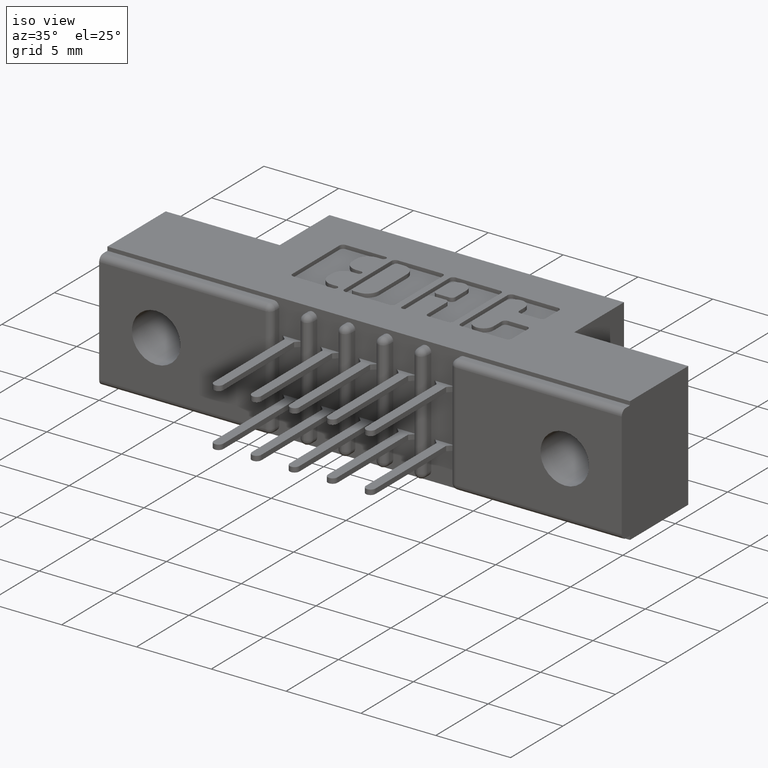
[diagram: clean part render]
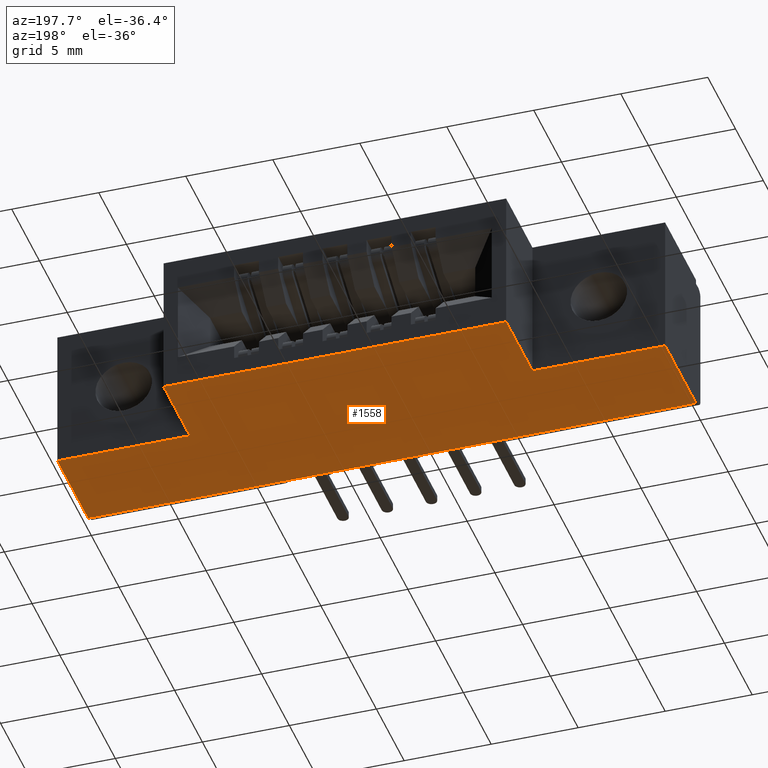
[diagram: tour spotlight — one face highlighted and labeled with its STEP entity id]
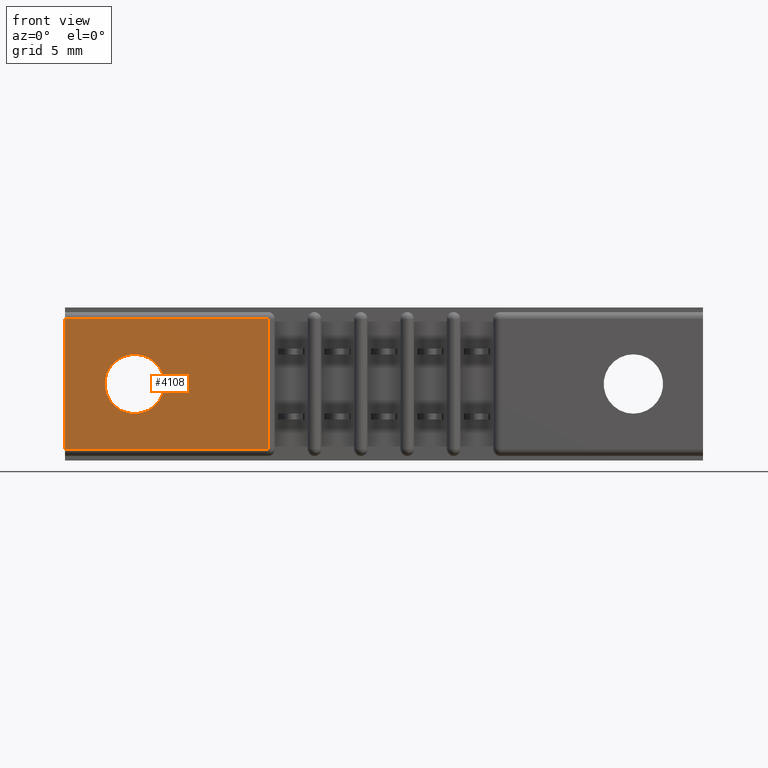
[diagram: tour spotlight — one face highlighted and labeled with its STEP entity id]
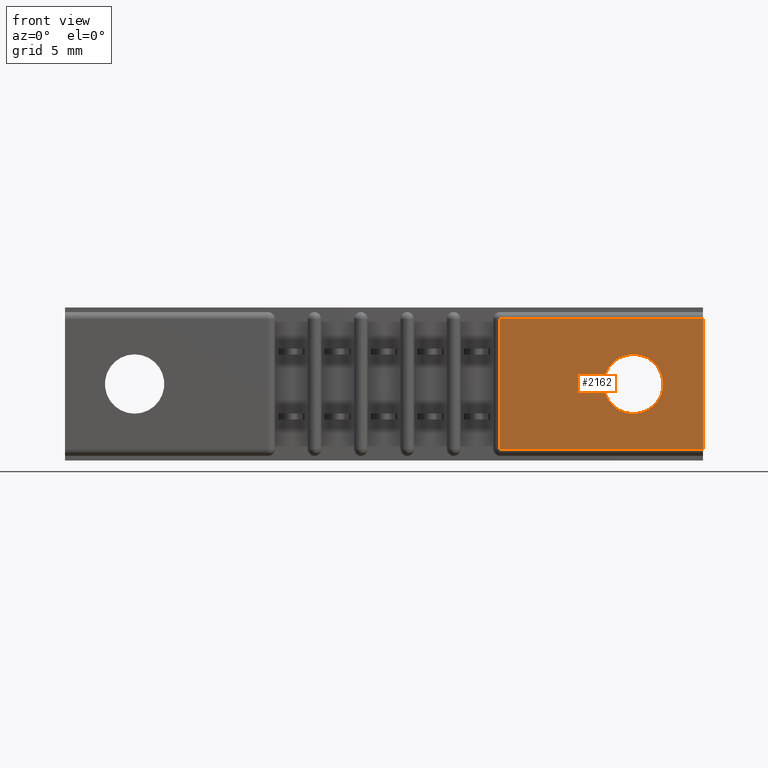
[diagram: tour spotlight — one face highlighted and labeled with its STEP entity id]
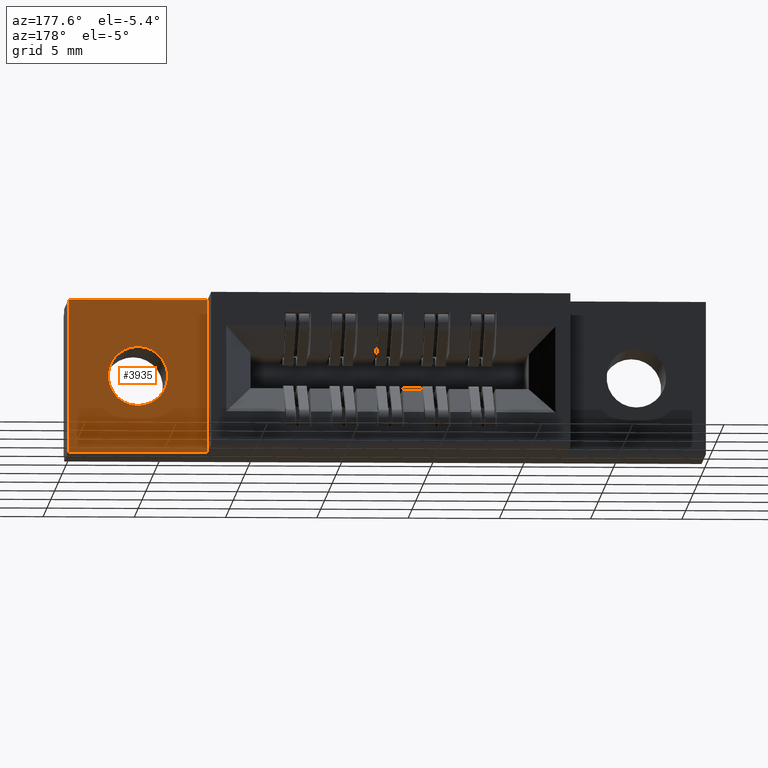
[diagram: tour spotlight — one face highlighted and labeled with its STEP entity id]
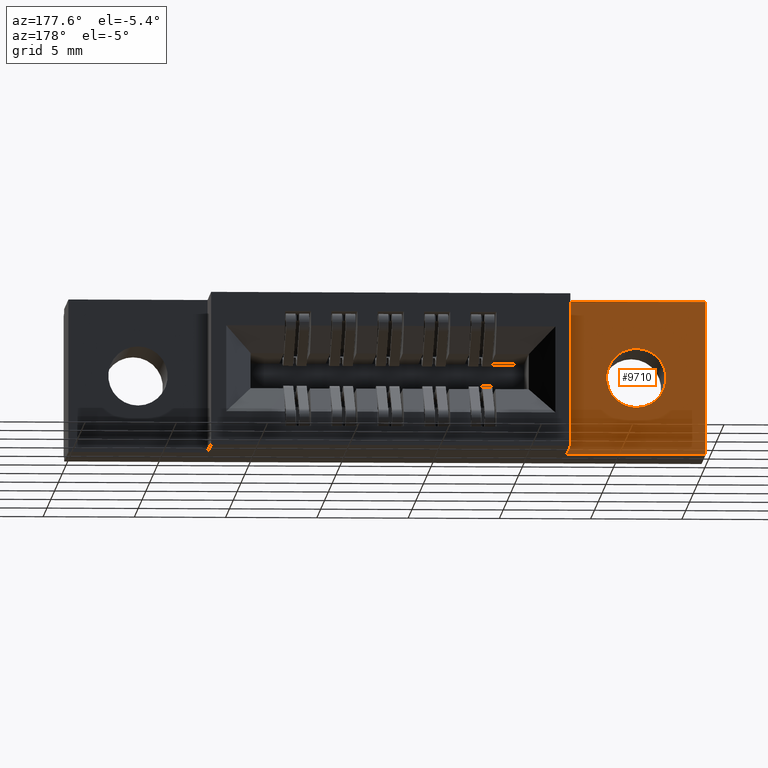
[diagram: tour spotlight — one face highlighted and labeled with its STEP entity id]
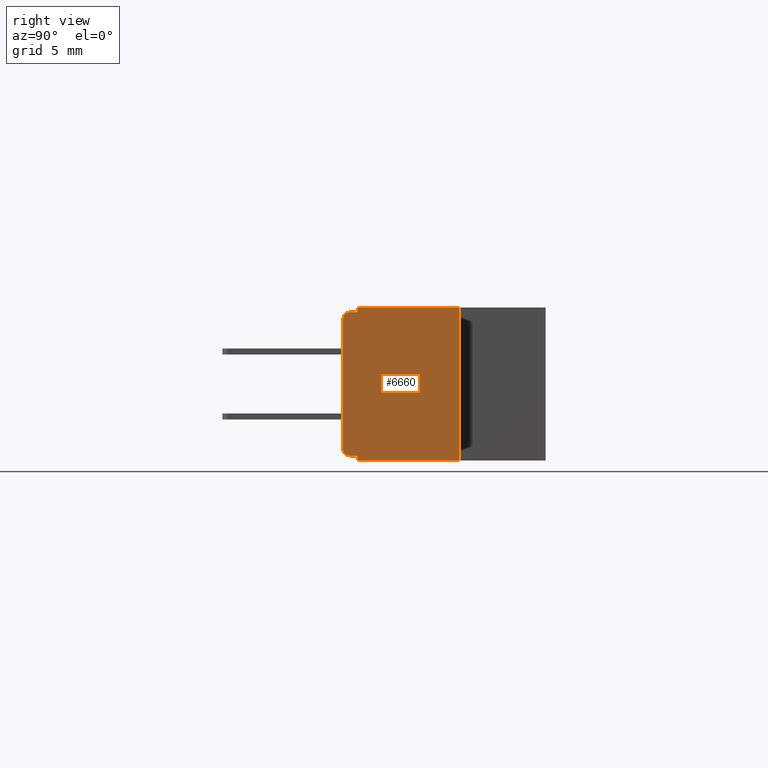
[diagram: tour spotlight — one face highlighted and labeled with its STEP entity id]
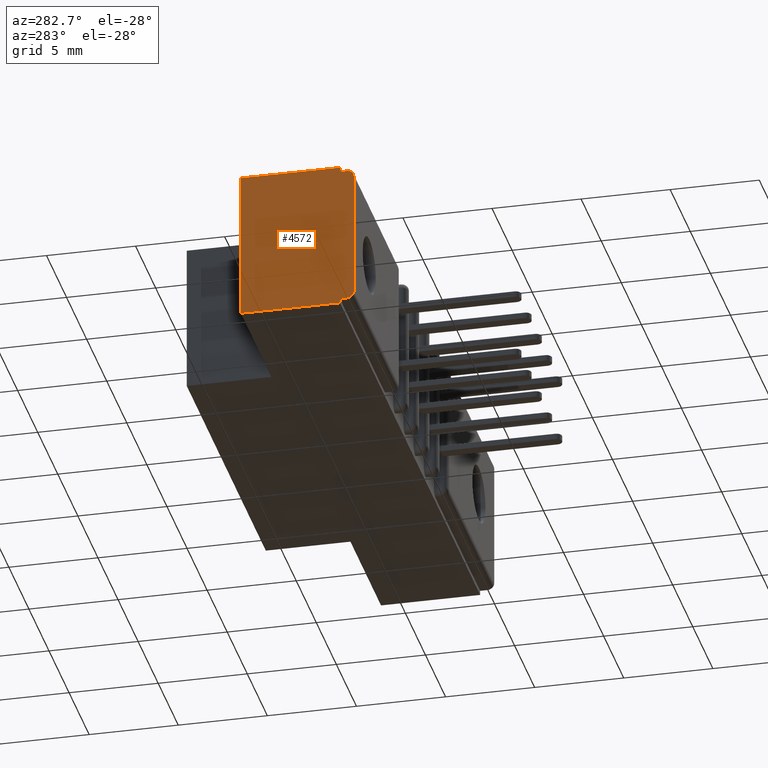
[diagram: tour spotlight — one face highlighted and labeled with its STEP entity id]
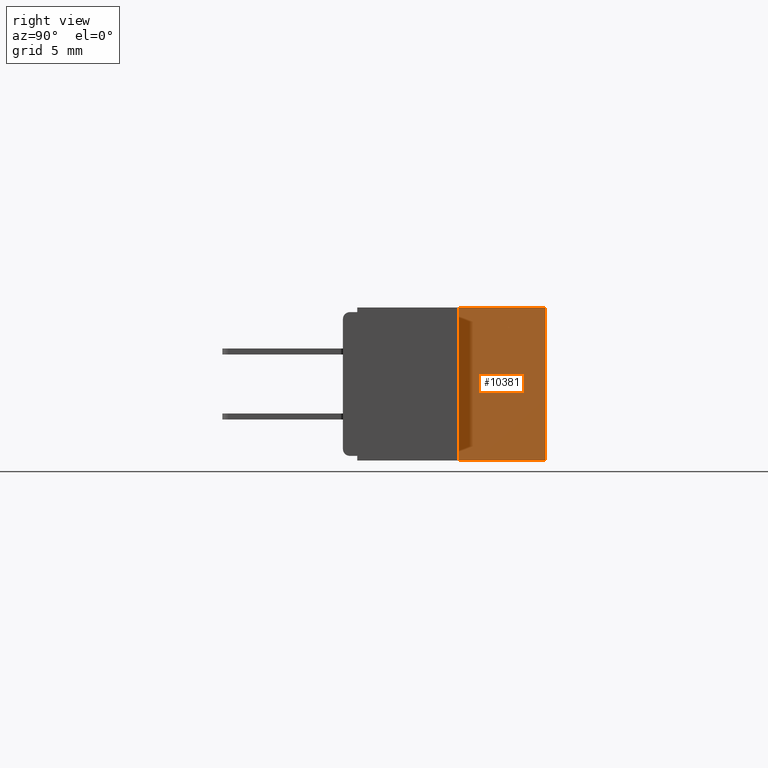
[diagram: tour spotlight — one face highlighted and labeled with its STEP entity id]
A machine part: a face-by-face anatomy tour. The part has 776 B-rep faces; the first image is the clean iso view, then the 8 largest visible faces are spotlighted one at a time (largest first), each with its STEP entity span.

Face 1 — auxiliary view, entity #1558. In plain terms, the highlighted planar face has unit normal (0, 0, 1).
Definition (entity closure, byte-faithful):
#632 = LINE ( 'NONE', #4610, #7592 ) ;
#1298 = CARTESIAN_POINT ( 'NONE',  ( 1.075000000000000000, 0.2500000000000000000, -0.3300000000000000200 ) ) ;
#1558 = ADVANCED_FACE ( 'NONE', ( #4088 ), #8447, .F. ) ;
#1804 = VECTOR ( 'NONE', #8554, 39.37007874015748100 ) ;
#1938 = DIRECTION ( 'NONE',  ( -0.0000000000000000000, -1.000000000000000000, -0.0000000000000000000 ) ) ;
#2099 = EDGE_CURVE ( 'NONE', #10611, #6174, #6295, .T. ) ;
#2103 = LINE ( 'NONE', #2638, #7093 ) ;
#2166 = DIRECTION ( 'NONE',  ( 1.000000000000000000, 0.0000000000000000000, -0.0000000000000000000 ) ) ;
#2638 = CARTESIAN_POINT ( 'NONE',  ( 0.0000000000000000000, 0.4370000000000000000, -0.3300000000000000200 ) ) ;
#2770 = EDGE_CURVE ( 'NONE', #4514, #5449, #7343, .T. ) ;
#2853 = EDGE_CURVE ( 'NONE', #6174, #5449, #8644, .T. ) ;
#2933 = CARTESIAN_POINT ( 'NONE',  ( 1.375000000000000000, 0.2500000000000000000, -0.3300000000000000200 ) ) ;
#2983 = EDGE_CURVE ( 'NONE', #10653, #4514, #5148, .T. ) ;
#3132 = EDGE_CURVE ( 'NONE', #10653, #6095, #8293, .T. ) ;
#3149 = EDGE_CURVE ( 'NONE', #10411, #7010, #632, .T. ) ;
#3163 = CARTESIAN_POINT ( 'NONE',  ( 0.0000000000000000000, 0.03099999999999996200, -0.3299999999999999000 ) ) ;
#3302 = EDGE_CURVE ( 'NONE', #10611, #10411, #5985, .T. ) ;
#3617 = ORIENTED_EDGE ( 'NONE', *, *, #2099, .T. ) ;
#3640 = CARTESIAN_POINT ( 'NONE',  ( 1.375000000000000000, 0.4370000000000000000, -0.3300000000000000200 ) ) ;
#3690 = ORIENTED_EDGE ( 'NONE', *, *, #2770, .F. ) ;
#3910 = CARTESIAN_POINT ( 'NONE',  ( 0.2999999999999999300, 0.2500000000000000000, -0.3300000000000000200 ) ) ;
#4088 = FACE_OUTER_BOUND ( 'NONE', #5371, .T. ) ;
#4143 = ORIENTED_EDGE ( 'NONE', *, *, #3302, .F. ) ;
#4223 = DIRECTION ( 'NONE',  ( -1.000000000000000000, -0.0000000000000000000, -0.0000000000000000000 ) ) ;
#4292 = CARTESIAN_POINT ( 'NONE',  ( 1.375000000000000000, 0.2500000000000000000, -0.3300000000000000200 ) ) ;
#4514 = VERTEX_POINT ( 'NONE', #4648 ) ;
#4550 = DIRECTION ( 'NONE',  ( -0.0000000000000000000, 1.000000000000000000, -0.0000000000000000000 ) ) ;
#4563 = DIRECTION ( 'NONE',  ( -1.000000000000000000, 0.0000000000000000000, 0.0000000000000000000 ) ) ;
#4610 = CARTESIAN_POINT ( 'NONE',  ( 1.075000000000000000, 0.2500000000000000000, -0.3300000000000000200 ) ) ;
#4615 = CARTESIAN_POINT ( 'NONE',  ( 1.075000000000000000, 0.4370000000000000000, -0.3300000000000000200 ) ) ;
#4648 = CARTESIAN_POINT ( 'NONE',  ( 0.0000000000000000000, 0.2500000000000000000, -0.3300000000000000200 ) ) ;
#4679 = ORIENTED_EDGE ( 'NONE', *, *, #2983, .F. ) ;
#4869 = ORIENTED_EDGE ( 'NONE', *, *, #2853, .T. ) ;
#5148 = LINE ( 'NONE', #8785, #7711 ) ;
#5214 = CARTESIAN_POINT ( 'NONE',  ( 0.2999999999999999300, 0.2500000000000000000, -0.3300000000000000200 ) ) ;
#5241 = DIRECTION ( 'NONE',  ( 0.0000000000000000000, 0.0000000000000000000, 1.000000000000000000 ) ) ;
#5371 = EDGE_LOOP ( 'NONE', ( #3617, #4869, #3690, #4679, #7177, #6809, #5536, #4143 ) ) ;
#5449 = VERTEX_POINT ( 'NONE', #3163 ) ;
#5536 = ORIENTED_EDGE ( 'NONE', *, *, #3149, .F. ) ;
#5985 = LINE ( 'NONE', #2933, #9916 ) ;
#6011 = VECTOR ( 'NONE', #1938, 39.37007874015748100 ) ;
#6095 = VERTEX_POINT ( 'NONE', #9013 ) ;
#6174 = VERTEX_POINT ( 'NONE', #8804 ) ;
#6295 = LINE ( 'NONE', #3640, #6011 ) ;
#6327 = DIRECTION ( 'NONE',  ( -0.0000000000000000000, -1.000000000000000000, -0.0000000000000000000 ) ) ;
#6459 = DIRECTION ( 'NONE',  ( -0.0000000000000000000, 1.000000000000000000, -0.0000000000000000000 ) ) ;
#6809 = ORIENTED_EDGE ( 'NONE', *, *, #9638, .F. ) ;
#7010 = VERTEX_POINT ( 'NONE', #4615 ) ;
#7049 = CARTESIAN_POINT ( 'NONE',  ( 1.375000000000000000, 0.03099999999999996200, -0.3299999999999999000 ) ) ;
#7072 = AXIS2_PLACEMENT_3D ( 'NONE', #10477, #5241, #2166 ) ;
#7079 = VECTOR ( 'NONE', #6327, 39.37007874015748100 ) ;
#7093 = VECTOR ( 'NONE', #7888, 39.37007874015748100 ) ;
#7177 = ORIENTED_EDGE ( 'NONE', *, *, #3132, .T. ) ;
#7343 = LINE ( 'NONE', #8551, #7079 ) ;
#7592 = VECTOR ( 'NONE', #6459, 39.37007874015748100 ) ;
#7711 = VECTOR ( 'NONE', #4223, 39.37007874015748100 ) ;
#7828 = VECTOR ( 'NONE', #4550, 39.37007874015748100 ) ;
#7888 = DIRECTION ( 'NONE',  ( -1.000000000000000000, -0.0000000000000000000, -0.0000000000000000000 ) ) ;
#8293 = LINE ( 'NONE', #3910, #7828 ) ;
#8447 = PLANE ( 'NONE',  #7072 ) ;
#8551 = CARTESIAN_POINT ( 'NONE',  ( 0.0000000000000000000, 0.4370000000000000000, -0.3300000000000000200 ) ) ;
#8554 = DIRECTION ( 'NONE',  ( -1.000000000000000000, -0.0000000000000000000, -0.0000000000000000000 ) ) ;
#8644 = LINE ( 'NONE', #7049, #1804 ) ;
#8785 = CARTESIAN_POINT ( 'NONE',  ( 0.0000000000000000000, 0.2500000000000000000, -0.3300000000000000200 ) ) ;
#8804 = CARTESIAN_POINT ( 'NONE',  ( 1.375000000000000000, 0.03099999999999996200, -0.3299999999999999000 ) ) ;
#9013 = CARTESIAN_POINT ( 'NONE',  ( 0.2999999999999999300, 0.4370000000000000000, -0.3300000000000000200 ) ) ;
#9638 = EDGE_CURVE ( 'NONE', #7010, #6095, #2103, .T. ) ;
#9916 = VECTOR ( 'NONE', #4563, 39.37007874015748100 ) ;
#10411 = VERTEX_POINT ( 'NONE', #1298 ) ;
#10477 = CARTESIAN_POINT ( 'NONE',  ( 0.0000000000000000000, 0.4370000000000000000, -0.3300000000000000200 ) ) ;
#10611 = VERTEX_POINT ( 'NONE', #4292 ) ;
#10653 = VERTEX_POINT ( 'NONE', #5214 ) ;

Face 2 — front view, entity #4108. In plain terms, the highlighted planar face has unit normal (0, -1, 0).
Definition (entity closure, byte-faithful):
#168 = EDGE_CURVE ( 'NONE', #1243, #3940, #9184, .T. ) ;
#425 = EDGE_LOOP ( 'NONE', ( #1376, #1796, #1914, #2397 ) ) ;
#575 = CARTESIAN_POINT ( 'NONE',  ( 0.1499999999999997700, 0.0000000000000000000, -0.1650000000000000100 ) ) ;
#698 = VERTEX_POINT ( 'NONE', #10010 ) ;
#738 = CIRCLE ( 'NONE', #1861, 0.06400000000000001500 ) ;
#1127 = CARTESIAN_POINT ( 'NONE',  ( 0.0000000000000000000, 0.0000000000000000000, -0.02499999999999997400 ) ) ;
#1150 = CARTESIAN_POINT ( 'NONE',  ( 0.0000000000000000000, 0.0000000000000000000, -0.3049999999999999400 ) ) ;
#1198 = CARTESIAN_POINT ( 'NONE',  ( 0.4372500000000004200, 0.0000000000000000000, -0.02499999999999997400 ) ) ;
#1243 = VERTEX_POINT ( 'NONE', #10867 ) ;
#1376 = ORIENTED_EDGE ( 'NONE', *, *, #5505, .T. ) ;
#1425 = VECTOR ( 'NONE', #10921, 39.37007874015748100 ) ;
#1796 = ORIENTED_EDGE ( 'NONE', *, *, #5586, .T. ) ;
#1861 = AXIS2_PLACEMENT_3D ( 'NONE', #10603, #10592, #10584 ) ;
#1914 = ORIENTED_EDGE ( 'NONE', *, *, #5601, .T. ) ;
#2189 = VERTEX_POINT ( 'NONE', #1150 ) ;
#2329 = CARTESIAN_POINT ( 'NONE',  ( 1.375000000000000000, 0.0000000000000000000, -0.3049999999999999400 ) ) ;
#2397 = ORIENTED_EDGE ( 'NONE', *, *, #5680, .F. ) ;
#2407 = ORIENTED_EDGE ( 'NONE', *, *, #5752, .T. ) ;
#2421 = CARTESIAN_POINT ( 'NONE',  ( 0.4372500000000004200, 0.0000000000000000000, -0.02499999999999997400 ) ) ;
#2571 = DIRECTION ( 'NONE',  ( 1.000000000000000000, -0.0000000000000000000, -0.0000000000000000000 ) ) ;
#2618 = ORIENTED_EDGE ( 'NONE', *, *, #168, .T. ) ;
#2885 = LINE ( 'NONE', #1198, #4964 ) ;
#3517 = AXIS2_PLACEMENT_3D ( 'NONE', #7666, #7534, #7508 ) ;
#3581 = FACE_BOUND ( 'NONE', #6921, .T. ) ;
#3940 = VERTEX_POINT ( 'NONE', #10695 ) ;
#4108 = ADVANCED_FACE ( 'NONE', ( #5960, #3581 ), #8098, .T. ) ;
#4964 = VECTOR ( 'NONE', #10868, 39.37007874015748100 ) ;
#5505 = EDGE_CURVE ( 'NONE', #2189, #698, #8024, .T. ) ;
#5586 = EDGE_CURVE ( 'NONE', #698, #7415, #2885, .T. ) ;
#5601 = EDGE_CURVE ( 'NONE', #7415, #6617, #7549, .T. ) ;
#5680 = EDGE_CURVE ( 'NONE', #2189, #6617, #6211, .T. ) ;
#5752 = EDGE_CURVE ( 'NONE', #3940, #1243, #738, .T. ) ;
#5960 = FACE_OUTER_BOUND ( 'NONE', #425, .T. ) ;
#6211 = LINE ( 'NONE', #10960, #1425 ) ;
#6384 = CARTESIAN_POINT ( 'NONE',  ( 0.0000000000000000000, 0.0000000000000000000, -0.02499999999999997400 ) ) ;
#6617 = VERTEX_POINT ( 'NONE', #6384 ) ;
#6921 = EDGE_LOOP ( 'NONE', ( #2407, #2618 ) ) ;
#7415 = VERTEX_POINT ( 'NONE', #2421 ) ;
#7508 = DIRECTION ( 'NONE',  ( 0.0000000000000000000, -0.0000000000000000000, -1.000000000000000000 ) ) ;
#7534 = DIRECTION ( 'NONE',  ( 0.0000000000000000000, -1.000000000000000000, 0.0000000000000000000 ) ) ;
#7549 = LINE ( 'NONE', #1127, #8854 ) ;
#7666 = CARTESIAN_POINT ( 'NONE',  ( 0.0000000000000000000, 0.0000000000000000000, -0.3300000000000000200 ) ) ;
#7785 = VECTOR ( 'NONE', #2571, 39.37007874015748100 ) ;
#8024 = LINE ( 'NONE', #2329, #7785 ) ;
#8098 = PLANE ( 'NONE',  #3517 ) ;
#8854 = VECTOR ( 'NONE', #9143, 39.37007874015748100 ) ;
#9121 = DIRECTION ( 'NONE',  ( 0.0000000000000000000, 0.0000000000000000000, -1.000000000000000000 ) ) ;
#9143 = DIRECTION ( 'NONE',  ( -1.000000000000000000, 0.0000000000000000000, 0.0000000000000000000 ) ) ;
#9145 = AXIS2_PLACEMENT_3D ( 'NONE', #575, #10874, #9121 ) ;
#9184 = CIRCLE ( 'NONE', #9145, 0.06400000000000001500 ) ;
#10010 = CARTESIAN_POINT ( 'NONE',  ( 0.4372500000000003600, 0.0000000000000000000, -0.3049999999999999400 ) ) ;
#10584 = DIRECTION ( 'NONE',  ( 0.0000000000000000000, 0.0000000000000000000, -1.000000000000000000 ) ) ;
#10592 = DIRECTION ( 'NONE',  ( -0.0000000000000000000, 1.000000000000000000, -0.0000000000000000000 ) ) ;
#10603 = CARTESIAN_POINT ( 'NONE',  ( 0.1499999999999997700, 0.0000000000000000000, -0.1650000000000000100 ) ) ;
#10695 = CARTESIAN_POINT ( 'NONE',  ( 0.1499999999999997700, 0.0000000000000000000, -0.1009999999999999900 ) ) ;
#10867 = CARTESIAN_POINT ( 'NONE',  ( 0.1499999999999997700, 0.0000000000000000000, -0.2290000000000000400 ) ) ;
#10868 = DIRECTION ( 'NONE',  ( -0.0000000000000000000, -0.0000000000000000000, 1.000000000000000000 ) ) ;
#10874 = DIRECTION ( 'NONE',  ( -0.0000000000000000000, 1.000000000000000000, -0.0000000000000000000 ) ) ;
#10921 = DIRECTION ( 'NONE',  ( -0.0000000000000000000, -0.0000000000000000000, 1.000000000000000000 ) ) ;
#10960 = CARTESIAN_POINT ( 'NONE',  ( 0.0000000000000000000, 0.0000000000000000000, 0.0000000000000000000 ) ) ;

Face 3 — front view, entity #2162. In plain terms, the highlighted planar face has unit normal (0, -1, 0).
Definition (entity closure, byte-faithful):
#199 = CARTESIAN_POINT ( 'NONE',  ( 0.9377500000000004200, 0.0000000000000000000, -0.02499999999999997400 ) ) ;
#423 = VERTEX_POINT ( 'NONE', #6985 ) ;
#489 = FACE_BOUND ( 'NONE', #4354, .T. ) ;
#650 = DIRECTION ( 'NONE',  ( 0.0000000000000000000, 0.0000000000000000000, -1.000000000000000000 ) ) ;
#734 = CARTESIAN_POINT ( 'NONE',  ( 1.375000000000000000, 0.0000000000000000000, -0.3049999999999999400 ) ) ;
#778 = CIRCLE ( 'NONE', #3838, 0.06399999999999984900 ) ;
#860 = VECTOR ( 'NONE', #6671, 39.37007874015748100 ) ;
#899 = VERTEX_POINT ( 'NONE', #7169 ) ;
#907 = ORIENTED_EDGE ( 'NONE', *, *, #3440, .T. ) ;
#968 = DIRECTION ( 'NONE',  ( 1.000000000000000000, -0.0000000000000000000, -0.0000000000000000000 ) ) ;
#1201 = LINE ( 'NONE', #10884, #860 ) ;
#1233 = CARTESIAN_POINT ( 'NONE',  ( 0.0000000000000000000, 0.0000000000000000000, -0.3300000000000000200 ) ) ;
#1265 = CARTESIAN_POINT ( 'NONE',  ( 1.375000000000000000, 0.0000000000000000000, -0.3049999999999999400 ) ) ;
#1526 = EDGE_LOOP ( 'NONE', ( #907, #1705, #5363, #5049 ) ) ;
#1575 = DIRECTION ( 'NONE',  ( 0.0000000000000000000, -1.000000000000000000, 0.0000000000000000000 ) ) ;
#1603 = PLANE ( 'NONE',  #6269 ) ;
#1705 = ORIENTED_EDGE ( 'NONE', *, *, #3566, .T. ) ;
#1757 = ORIENTED_EDGE ( 'NONE', *, *, #3755, .T. ) ;
#1769 = EDGE_CURVE ( 'NONE', #423, #5605, #1201, .T. ) ;
#2080 = DIRECTION ( 'NONE',  ( 0.0000000000000000000, -0.0000000000000000000, -1.000000000000000000 ) ) ;
#2162 = ADVANCED_FACE ( 'NONE', ( #7968, #489 ), #1603, .T. ) ;
#2402 = CARTESIAN_POINT ( 'NONE',  ( 1.225000000000000100, 0.0000000000000000000, -0.2290000000000000100 ) ) ;
#2628 = VECTOR ( 'NONE', #4781, 39.37007874015748100 ) ;
#2893 = DIRECTION ( 'NONE',  ( -1.000000000000000000, 0.0000000000000000000, 0.0000000000000000000 ) ) ;
#2932 = CARTESIAN_POINT ( 'NONE',  ( 0.0000000000000000000, 0.0000000000000000000, -0.02499999999999997400 ) ) ;
#3440 = EDGE_CURVE ( 'NONE', #423, #3704, #8764, .T. ) ;
#3566 = EDGE_CURVE ( 'NONE', #3704, #899, #7325, .T. ) ;
#3663 = EDGE_CURVE ( 'NONE', #899, #5605, #10126, .T. ) ;
#3704 = VERTEX_POINT ( 'NONE', #199 ) ;
#3755 = EDGE_CURVE ( 'NONE', #5146, #7427, #778, .T. ) ;
#3838 = AXIS2_PLACEMENT_3D ( 'NONE', #7123, #7101, #7080 ) ;
#4354 = EDGE_LOOP ( 'NONE', ( #1757, #5145 ) ) ;
#4781 = DIRECTION ( 'NONE',  ( 0.0000000000000000000, 0.0000000000000000000, -1.000000000000000000 ) ) ;
#5049 = ORIENTED_EDGE ( 'NONE', *, *, #1769, .F. ) ;
#5145 = ORIENTED_EDGE ( 'NONE', *, *, #9614, .T. ) ;
#5146 = VERTEX_POINT ( 'NONE', #8396 ) ;
#5363 = ORIENTED_EDGE ( 'NONE', *, *, #3663, .T. ) ;
#5605 = VERTEX_POINT ( 'NONE', #734 ) ;
#6181 = DIRECTION ( 'NONE',  ( -0.0000000000000000000, 1.000000000000000000, -0.0000000000000000000 ) ) ;
#6269 = AXIS2_PLACEMENT_3D ( 'NONE', #1233, #1575, #2080 ) ;
#6663 = VECTOR ( 'NONE', #2893, 39.37007874015748100 ) ;
#6671 = DIRECTION ( 'NONE',  ( 0.0000000000000000000, 0.0000000000000000000, -1.000000000000000000 ) ) ;
#6985 = CARTESIAN_POINT ( 'NONE',  ( 1.375000000000000000, 0.0000000000000000000, -0.02499999999999997400 ) ) ;
#7080 = DIRECTION ( 'NONE',  ( 0.0000000000000000000, 0.0000000000000000000, -1.000000000000000000 ) ) ;
#7101 = DIRECTION ( 'NONE',  ( -0.0000000000000000000, 1.000000000000000000, -0.0000000000000000000 ) ) ;
#7123 = CARTESIAN_POINT ( 'NONE',  ( 1.225000000000000100, 0.0000000000000000000, -0.1650000000000001500 ) ) ;
#7169 = CARTESIAN_POINT ( 'NONE',  ( 0.9377500000000004200, 0.0000000000000000000, -0.3049999999999999400 ) ) ;
#7325 = LINE ( 'NONE', #7697, #2628 ) ;
#7427 = VERTEX_POINT ( 'NONE', #2402 ) ;
#7697 = CARTESIAN_POINT ( 'NONE',  ( 0.9377500000000004200, 0.0000000000000000000, -0.3049999999999999400 ) ) ;
#7935 = VECTOR ( 'NONE', #968, 39.37007874015748100 ) ;
#7968 = FACE_OUTER_BOUND ( 'NONE', #1526, .T. ) ;
#8396 = CARTESIAN_POINT ( 'NONE',  ( 1.225000000000000100, 0.0000000000000000000, -0.1010000000000002800 ) ) ;
#8764 = LINE ( 'NONE', #2932, #6663 ) ;
#8914 = CIRCLE ( 'NONE', #9834, 0.06399999999999984900 ) ;
#9614 = EDGE_CURVE ( 'NONE', #7427, #5146, #8914, .T. ) ;
#9834 = AXIS2_PLACEMENT_3D ( 'NONE', #10742, #6181, #650 ) ;
#10126 = LINE ( 'NONE', #1265, #7935 ) ;
#10742 = CARTESIAN_POINT ( 'NONE',  ( 1.225000000000000100, 0.0000000000000000000, -0.1650000000000001500 ) ) ;
#10884 = CARTESIAN_POINT ( 'NONE',  ( 1.375000000000000000, 0.0000000000000000000, 0.0000000000000000000 ) ) ;

Face 4 — auxiliary view, entity #3935. In plain terms, the highlighted planar face has unit normal (0, 1, 0).
Definition (entity closure, byte-faithful):
#13 = ORIENTED_EDGE ( 'NONE', *, *, #4326, .F. ) ;
#319 = DIRECTION ( 'NONE',  ( 0.0000000000000000000, 0.0000000000000000000, 1.000000000000000000 ) ) ;
#327 = ORIENTED_EDGE ( 'NONE', *, *, #1438, .F. ) ;
#547 = ORIENTED_EDGE ( 'NONE', *, *, #3302, .T. ) ;
#693 = ORIENTED_EDGE ( 'NONE', *, *, #4186, .T. ) ;
#706 = ORIENTED_EDGE ( 'NONE', *, *, #7268, .T. ) ;
#742 = VERTEX_POINT ( 'NONE', #1226 ) ;
#883 = ORIENTED_EDGE ( 'NONE', *, *, #2160, .T. ) ;
#1165 = PLANE ( 'NONE',  #3696 ) ;
#1193 = CARTESIAN_POINT ( 'NONE',  ( 1.075000000000000000, 0.2500000000000000000, -0.3300000000000000200 ) ) ;
#1226 = CARTESIAN_POINT ( 'NONE',  ( 1.075000000000000000, 0.2500000000000000000, -1.836970198721029400E-017 ) ) ;
#1298 = CARTESIAN_POINT ( 'NONE',  ( 1.075000000000000000, 0.2500000000000000000, -0.3300000000000000200 ) ) ;
#1337 = DIRECTION ( 'NONE',  ( 0.0000000000000000000, 1.000000000000000000, -0.0000000000000000000 ) ) ;
#1402 = DIRECTION ( 'NONE',  ( -0.0000000000000000000, -0.0000000000000000000, -1.000000000000000000 ) ) ;
#1438 = EDGE_CURVE ( 'NONE', #7882, #7908, #9277, .T. ) ;
#1444 = CARTESIAN_POINT ( 'NONE',  ( 1.375000000000000000, 0.2500000000000000000, -0.3300000000000000200 ) ) ;
#2160 = EDGE_CURVE ( 'NONE', #7126, #10611, #9720, .T. ) ;
#2173 = EDGE_LOOP ( 'NONE', ( #13, #327 ) ) ;
#2750 = DIRECTION ( 'NONE',  ( 0.0000000000000000000, 0.0000000000000000000, -1.000000000000000000 ) ) ;
#2812 = DIRECTION ( 'NONE',  ( 0.0000000000000000000, 1.000000000000000000, -0.0000000000000000000 ) ) ;
#2824 = CARTESIAN_POINT ( 'NONE',  ( 1.225000000000000100, 0.2500000000000000000, -0.1650000000000001500 ) ) ;
#2933 = CARTESIAN_POINT ( 'NONE',  ( 1.375000000000000000, 0.2500000000000000000, -0.3300000000000000200 ) ) ;
#3244 = CARTESIAN_POINT ( 'NONE',  ( 1.375000000000000000, 0.2500000000000000000, 0.0000000000000000000 ) ) ;
#3253 = CARTESIAN_POINT ( 'NONE',  ( 1.225000000000000100, 0.2500000000000000000, -0.1010000000000002800 ) ) ;
#3268 = DIRECTION ( 'NONE',  ( 1.000000000000000000, -0.0000000000000000000, 6.123233995736766000E-017 ) ) ;
#3302 = EDGE_CURVE ( 'NONE', #10611, #10411, #5985, .T. ) ;
#3321 = AXIS2_PLACEMENT_3D ( 'NONE', #2824, #2812, #2750 ) ;
#3362 = VECTOR ( 'NONE', #1402, 39.37007874015748100 ) ;
#3415 = VECTOR ( 'NONE', #3268, 39.37007874015748100 ) ;
#3696 = AXIS2_PLACEMENT_3D ( 'NONE', #1193, #1337, #319 ) ;
#3740 = FACE_BOUND ( 'NONE', #2173, .T. ) ;
#3935 = ADVANCED_FACE ( 'NONE', ( #3740, #5555 ), #1165, .T. ) ;
#4013 = CARTESIAN_POINT ( 'NONE',  ( 1.375000000000000000, 0.2500000000000000000, 0.0000000000000000000 ) ) ;
#4186 = EDGE_CURVE ( 'NONE', #10411, #742, #9452, .T. ) ;
#4292 = CARTESIAN_POINT ( 'NONE',  ( 1.375000000000000000, 0.2500000000000000000, -0.3300000000000000200 ) ) ;
#4326 = EDGE_CURVE ( 'NONE', #7908, #7882, #7795, .T. ) ;
#4563 = DIRECTION ( 'NONE',  ( -1.000000000000000000, 0.0000000000000000000, 0.0000000000000000000 ) ) ;
#5555 = FACE_OUTER_BOUND ( 'NONE', #8302, .T. ) ;
#5985 = LINE ( 'NONE', #2933, #9916 ) ;
#6597 = CARTESIAN_POINT ( 'NONE',  ( 1.075000000000000000, 0.2500000000000000000, -0.3300000000000000200 ) ) ;
#6654 = DIRECTION ( 'NONE',  ( 0.0000000000000000000, 0.0000000000000000000, 1.000000000000000000 ) ) ;
#7126 = VERTEX_POINT ( 'NONE', #4013 ) ;
#7268 = EDGE_CURVE ( 'NONE', #742, #7126, #9985, .T. ) ;
#7330 = AXIS2_PLACEMENT_3D ( 'NONE', #9527, #7998, #10602 ) ;
#7795 = CIRCLE ( 'NONE', #3321, 0.06399999999999984900 ) ;
#7882 = VERTEX_POINT ( 'NONE', #9838 ) ;
#7908 = VERTEX_POINT ( 'NONE', #3253 ) ;
#7998 = DIRECTION ( 'NONE',  ( 0.0000000000000000000, 1.000000000000000000, -0.0000000000000000000 ) ) ;
#8302 = EDGE_LOOP ( 'NONE', ( #547, #693, #706, #883 ) ) ;
#9277 = CIRCLE ( 'NONE', #7330, 0.06399999999999984900 ) ;
#9452 = LINE ( 'NONE', #6597, #9675 ) ;
#9527 = CARTESIAN_POINT ( 'NONE',  ( 1.225000000000000100, 0.2500000000000000000, -0.1650000000000001500 ) ) ;
#9675 = VECTOR ( 'NONE', #6654, 39.37007874015748100 ) ;
#9720 = LINE ( 'NONE', #1444, #3362 ) ;
#9838 = CARTESIAN_POINT ( 'NONE',  ( 1.225000000000000100, 0.2500000000000000000, -0.2290000000000000100 ) ) ;
#9916 = VECTOR ( 'NONE', #4563, 39.37007874015748100 ) ;
#9985 = LINE ( 'NONE', #3244, #3415 ) ;
#10411 = VERTEX_POINT ( 'NONE', #1298 ) ;
#10602 = DIRECTION ( 'NONE',  ( 0.0000000000000000000, 0.0000000000000000000, -1.000000000000000000 ) ) ;
#10611 = VERTEX_POINT ( 'NONE', #4292 ) ;

Face 5 — auxiliary view, entity #9710. In plain terms, the highlighted planar face has unit normal (0, 1, 0).
Definition (entity closure, byte-faithful):
#484 = LINE ( 'NONE', #6331, #7476 ) ;
#845 = DIRECTION ( 'NONE',  ( 0.0000000000000000000, 1.000000000000000000, 0.0000000000000000000 ) ) ;
#890 = DIRECTION ( 'NONE',  ( 0.0000000000000000000, 0.0000000000000000000, 1.000000000000000000 ) ) ;
#924 = VERTEX_POINT ( 'NONE', #10836 ) ;
#1163 = DIRECTION ( 'NONE',  ( 0.0000000000000000000, 0.0000000000000000000, 1.000000000000000000 ) ) ;
#1332 = DIRECTION ( 'NONE',  ( 0.0000000000000000000, 1.000000000000000000, 0.0000000000000000000 ) ) ;
#1388 = CARTESIAN_POINT ( 'NONE',  ( 0.1499999999999997700, 0.2500000000000000000, -0.1650000000000000100 ) ) ;
#2197 = DIRECTION ( 'NONE',  ( 0.0000000000000000000, 0.0000000000000000000, 1.000000000000000000 ) ) ;
#2353 = AXIS2_PLACEMENT_3D ( 'NONE', #10883, #6368, #890 ) ;
#2600 = ORIENTED_EDGE ( 'NONE', *, *, #2691, .T. ) ;
#2691 = EDGE_CURVE ( 'NONE', #4514, #8732, #8069, .T. ) ;
#2952 = AXIS2_PLACEMENT_3D ( 'NONE', #10850, #845, #7189 ) ;
#2979 = VERTEX_POINT ( 'NONE', #6151 ) ;
#2983 = EDGE_CURVE ( 'NONE', #10653, #4514, #5148, .T. ) ;
#3085 = FACE_BOUND ( 'NONE', #5997, .T. ) ;
#3492 = EDGE_LOOP ( 'NONE', ( #2600, #3825, #6019, #6165 ) ) ;
#3687 = DIRECTION ( 'NONE',  ( 1.000000000000000000, 0.0000000000000000000, 0.0000000000000000000 ) ) ;
#3818 = AXIS2_PLACEMENT_3D ( 'NONE', #1388, #1332, #1163 ) ;
#3825 = ORIENTED_EDGE ( 'NONE', *, *, #9717, .T. ) ;
#3826 = EDGE_CURVE ( 'NONE', #8023, #10653, #6652, .T. ) ;
#3908 = EDGE_CURVE ( 'NONE', #924, #2979, #5841, .T. ) ;
#4085 = ORIENTED_EDGE ( 'NONE', *, *, #9719, .F. ) ;
#4223 = DIRECTION ( 'NONE',  ( -1.000000000000000000, -0.0000000000000000000, -0.0000000000000000000 ) ) ;
#4514 = VERTEX_POINT ( 'NONE', #4648 ) ;
#4648 = CARTESIAN_POINT ( 'NONE',  ( 0.0000000000000000000, 0.2500000000000000000, -0.3300000000000000200 ) ) ;
#4746 = CARTESIAN_POINT ( 'NONE',  ( 0.2999999999999999300, 0.2500000000000000000, -0.3300000000000000200 ) ) ;
#4998 = ORIENTED_EDGE ( 'NONE', *, *, #3908, .F. ) ;
#5148 = LINE ( 'NONE', #8785, #7711 ) ;
#5214 = CARTESIAN_POINT ( 'NONE',  ( 0.2999999999999999300, 0.2500000000000000000, -0.3300000000000000200 ) ) ;
#5438 = PLANE ( 'NONE',  #2952 ) ;
#5532 = DIRECTION ( 'NONE',  ( -1.034790906691008700E-016, -0.0000000000000000000, -1.000000000000000000 ) ) ;
#5841 = CIRCLE ( 'NONE', #3818, 0.06400000000000001500 ) ;
#5997 = EDGE_LOOP ( 'NONE', ( #4998, #4085 ) ) ;
#6003 = CARTESIAN_POINT ( 'NONE',  ( 0.0000000000000000000, 0.2500000000000000000, 0.0000000000000000000 ) ) ;
#6019 = ORIENTED_EDGE ( 'NONE', *, *, #3826, .T. ) ;
#6151 = CARTESIAN_POINT ( 'NONE',  ( 0.1499999999999997700, 0.2500000000000000000, -0.2290000000000000400 ) ) ;
#6165 = ORIENTED_EDGE ( 'NONE', *, *, #2983, .T. ) ;
#6331 = CARTESIAN_POINT ( 'NONE',  ( 0.0000000000000000000, 0.2500000000000000000, 0.0000000000000000000 ) ) ;
#6368 = DIRECTION ( 'NONE',  ( 0.0000000000000000000, 1.000000000000000000, 0.0000000000000000000 ) ) ;
#6652 = LINE ( 'NONE', #4746, #8754 ) ;
#6954 = CARTESIAN_POINT ( 'NONE',  ( 0.2999999999999999900, 0.2500000000000000000, 0.0000000000000000000 ) ) ;
#7189 = DIRECTION ( 'NONE',  ( 0.0000000000000000000, -0.0000000000000000000, 1.000000000000000000 ) ) ;
#7476 = VECTOR ( 'NONE', #3687, 39.37007874015748100 ) ;
#7711 = VECTOR ( 'NONE', #4223, 39.37007874015748100 ) ;
#7723 = FACE_OUTER_BOUND ( 'NONE', #3492, .T. ) ;
#8023 = VERTEX_POINT ( 'NONE', #6954 ) ;
#8069 = LINE ( 'NONE', #9132, #8304 ) ;
#8304 = VECTOR ( 'NONE', #2197, 39.37007874015748100 ) ;
#8732 = VERTEX_POINT ( 'NONE', #6003 ) ;
#8754 = VECTOR ( 'NONE', #5532, 39.37007874015748100 ) ;
#8785 = CARTESIAN_POINT ( 'NONE',  ( 0.0000000000000000000, 0.2500000000000000000, -0.3300000000000000200 ) ) ;
#9132 = CARTESIAN_POINT ( 'NONE',  ( 0.0000000000000000000, 0.2500000000000000000, -0.3300000000000000200 ) ) ;
#9495 = CIRCLE ( 'NONE', #2353, 0.06400000000000001500 ) ;
#9710 = ADVANCED_FACE ( 'NONE', ( #3085, #7723 ), #5438, .T. ) ;
#9717 = EDGE_CURVE ( 'NONE', #8732, #8023, #484, .T. ) ;
#9719 = EDGE_CURVE ( 'NONE', #2979, #924, #9495, .T. ) ;
#10653 = VERTEX_POINT ( 'NONE', #5214 ) ;
#10836 = CARTESIAN_POINT ( 'NONE',  ( 0.1499999999999997700, 0.2500000000000000000, -0.1009999999999999900 ) ) ;
#10850 = CARTESIAN_POINT ( 'NONE',  ( 0.0000000000000000000, 0.2500000000000000000, 0.0000000000000000000 ) ) ;
#10883 = CARTESIAN_POINT ( 'NONE',  ( 0.1499999999999997700, 0.2500000000000000000, -0.1650000000000000100 ) ) ;

Face 6 — right view, entity #6660. In plain terms, the highlighted planar face has unit normal (-1, 0, 0).
Definition (entity closure, byte-faithful):
#258 = ORIENTED_EDGE ( 'NONE', *, *, #1790, .T. ) ;
#330 = LINE ( 'NONE', #8541, #5051 ) ;
#387 = ORIENTED_EDGE ( 'NONE', *, *, #1945, .T. ) ;
#423 = VERTEX_POINT ( 'NONE', #6985 ) ;
#636 = CARTESIAN_POINT ( 'NONE',  ( 1.375000000000000000, 0.03100000000000000300, -0.009999999999999962000 ) ) ;
#734 = CARTESIAN_POINT ( 'NONE',  ( 1.375000000000000000, 0.0000000000000000000, -0.3049999999999999400 ) ) ;
#860 = VECTOR ( 'NONE', #6671, 39.37007874015748100 ) ;
#879 = ORIENTED_EDGE ( 'NONE', *, *, #2099, .F. ) ;
#886 = AXIS2_PLACEMENT_3D ( 'NONE', #6115, #6088, #6075 ) ;
#1088 = ORIENTED_EDGE ( 'NONE', *, *, #2160, .F. ) ;
#1201 = LINE ( 'NONE', #10884, #860 ) ;
#1206 = ORIENTED_EDGE ( 'NONE', *, *, #9783, .T. ) ;
#1349 = ORIENTED_EDGE ( 'NONE', *, *, #2312, .T. ) ;
#1402 = DIRECTION ( 'NONE',  ( -0.0000000000000000000, -0.0000000000000000000, -1.000000000000000000 ) ) ;
#1444 = CARTESIAN_POINT ( 'NONE',  ( 1.375000000000000000, 0.2500000000000000000, -0.3300000000000000200 ) ) ;
#1468 = CARTESIAN_POINT ( 'NONE',  ( 1.375000000000000000, -3.918869757271529000E-017, -0.3199999999999999500 ) ) ;
#1600 = CARTESIAN_POINT ( 'NONE',  ( 1.375000000000000000, 0.01499999999999999900, -0.02499999999999997400 ) ) ;
#1619 = EDGE_CURVE ( 'NONE', #8080, #7300, #330, .T. ) ;
#1711 = EDGE_CURVE ( 'NONE', #7300, #423, #2114, .T. ) ;
#1767 = DIRECTION ( 'NONE',  ( -0.0000000000000000000, -1.000000000000000000, -0.0000000000000000000 ) ) ;
#1769 = EDGE_CURVE ( 'NONE', #423, #5605, #1201, .T. ) ;
#1790 = EDGE_CURVE ( 'NONE', #5605, #8642, #5759, .T. ) ;
#1938 = DIRECTION ( 'NONE',  ( -0.0000000000000000000, -1.000000000000000000, -0.0000000000000000000 ) ) ;
#1945 = EDGE_CURVE ( 'NONE', #8642, #2784, #10058, .T. ) ;
#2088 = EDGE_CURVE ( 'NONE', #2784, #6174, #10360, .T. ) ;
#2099 = EDGE_CURVE ( 'NONE', #10611, #6174, #6295, .T. ) ;
#2114 = CIRCLE ( 'NONE', #6728, 0.01499999999999999900 ) ;
#2160 = EDGE_CURVE ( 'NONE', #7126, #10611, #9720, .T. ) ;
#2312 = EDGE_CURVE ( 'NONE', #3797, #8080, #8312, .T. ) ;
#2784 = VERTEX_POINT ( 'NONE', #6999 ) ;
#2950 = DIRECTION ( 'NONE',  ( -0.0000000000000000000, -1.000000000000000000, -0.0000000000000000000 ) ) ;
#3002 = CARTESIAN_POINT ( 'NONE',  ( 1.375000000000000000, 0.01499999999999999900, -0.009999999999999962000 ) ) ;
#3158 = DIRECTION ( 'NONE',  ( 0.0000000000000000000, 0.0000000000000000000, 1.000000000000000000 ) ) ;
#3362 = VECTOR ( 'NONE', #1402, 39.37007874015748100 ) ;
#3402 = CARTESIAN_POINT ( 'NONE',  ( 1.375000000000000000, 0.01499999999999999900, -0.3049999999999999400 ) ) ;
#3509 = VECTOR ( 'NONE', #7438, 39.37007874015748100 ) ;
#3621 = DIRECTION ( 'NONE',  ( -0.0000000000000000000, -4.268512490100456800E-016, -1.000000000000000000 ) ) ;
#3640 = CARTESIAN_POINT ( 'NONE',  ( 1.375000000000000000, 0.4370000000000000000, -0.3300000000000000200 ) ) ;
#3794 = CARTESIAN_POINT ( 'NONE',  ( 1.375000000000000000, 0.03099999999999996200, -0.3299999999999999000 ) ) ;
#3797 = VERTEX_POINT ( 'NONE', #6387 ) ;
#3864 = ORIENTED_EDGE ( 'NONE', *, *, #1619, .T. ) ;
#3936 = ORIENTED_EDGE ( 'NONE', *, *, #1711, .T. ) ;
#4013 = CARTESIAN_POINT ( 'NONE',  ( 1.375000000000000000, 0.2500000000000000000, 0.0000000000000000000 ) ) ;
#4292 = CARTESIAN_POINT ( 'NONE',  ( 1.375000000000000000, 0.2500000000000000000, -0.3300000000000000200 ) ) ;
#4636 = LINE ( 'NONE', #5644, #10689 ) ;
#4750 = ORIENTED_EDGE ( 'NONE', *, *, #1769, .T. ) ;
#5051 = VECTOR ( 'NONE', #1767, 39.37007874015748100 ) ;
#5605 = VERTEX_POINT ( 'NONE', #734 ) ;
#5644 = CARTESIAN_POINT ( 'NONE',  ( 1.375000000000000000, 0.4370000000000000000, 0.0000000000000000000 ) ) ;
#5759 = CIRCLE ( 'NONE', #6616, 0.01500000000000001200 ) ;
#6011 = VECTOR ( 'NONE', #1938, 39.37007874015748100 ) ;
#6075 = DIRECTION ( 'NONE',  ( 0.0000000000000000000, 0.0000000000000000000, 1.000000000000000000 ) ) ;
#6088 = DIRECTION ( 'NONE',  ( -1.000000000000000000, 0.0000000000000000000, 0.0000000000000000000 ) ) ;
#6102 = PLANE ( 'NONE',  #886 ) ;
#6115 = CARTESIAN_POINT ( 'NONE',  ( 1.375000000000000000, 0.4370000000000000000, 0.0000000000000000000 ) ) ;
#6147 = VECTOR ( 'NONE', #8762, 39.37007874015748100 ) ;
#6174 = VERTEX_POINT ( 'NONE', #8804 ) ;
#6295 = LINE ( 'NONE', #3640, #6011 ) ;
#6306 = ORIENTED_EDGE ( 'NONE', *, *, #2088, .T. ) ;
#6387 = CARTESIAN_POINT ( 'NONE',  ( 1.375000000000000000, 0.03100000000000003800, -6.829619984160658000E-017 ) ) ;
#6448 = CARTESIAN_POINT ( 'NONE',  ( 1.375000000000000000, 0.03100000000000003800, -6.829619984160658000E-017 ) ) ;
#6616 = AXIS2_PLACEMENT_3D ( 'NONE', #3402, #10669, #8743 ) ;
#6660 = ADVANCED_FACE ( 'NONE', ( #9553 ), #6102, .F. ) ;
#6671 = DIRECTION ( 'NONE',  ( 0.0000000000000000000, 0.0000000000000000000, -1.000000000000000000 ) ) ;
#6728 = AXIS2_PLACEMENT_3D ( 'NONE', #1600, #7021, #3158 ) ;
#6985 = CARTESIAN_POINT ( 'NONE',  ( 1.375000000000000000, 0.0000000000000000000, -0.02499999999999997400 ) ) ;
#6999 = CARTESIAN_POINT ( 'NONE',  ( 1.375000000000000000, 0.03099999999999996500, -0.3200000000000000100 ) ) ;
#7021 = DIRECTION ( 'NONE',  ( 1.000000000000000000, -0.0000000000000000000, -0.0000000000000000000 ) ) ;
#7126 = VERTEX_POINT ( 'NONE', #4013 ) ;
#7300 = VERTEX_POINT ( 'NONE', #3002 ) ;
#7438 = DIRECTION ( 'NONE',  ( 0.0000000000000000000, 1.000000000000000000, -2.203103220696986300E-015 ) ) ;
#8080 = VERTEX_POINT ( 'NONE', #636 ) ;
#8312 = LINE ( 'NONE', #6448, #6147 ) ;
#8541 = CARTESIAN_POINT ( 'NONE',  ( 1.375000000000000000, -1.224646799147342800E-018, -0.009999999999999962000 ) ) ;
#8642 = VERTEX_POINT ( 'NONE', #9085 ) ;
#8743 = DIRECTION ( 'NONE',  ( 0.0000000000000000000, 0.0000000000000000000, 1.000000000000000000 ) ) ;
#8762 = DIRECTION ( 'NONE',  ( 0.0000000000000000000, -3.414809992080365400E-015, -1.000000000000000000 ) ) ;
#8804 = CARTESIAN_POINT ( 'NONE',  ( 1.375000000000000000, 0.03099999999999996200, -0.3299999999999999000 ) ) ;
#9085 = CARTESIAN_POINT ( 'NONE',  ( 1.375000000000000000, 0.01499999999999996800, -0.3199999999999999500 ) ) ;
#9553 = FACE_OUTER_BOUND ( 'NONE', #10007, .T. ) ;
#9720 = LINE ( 'NONE', #1444, #3362 ) ;
#9783 = EDGE_CURVE ( 'NONE', #7126, #3797, #4636, .T. ) ;
#10007 = EDGE_LOOP ( 'NONE', ( #3864, #3936, #4750, #258, #387, #6306, #879, #1088, #1206, #1349 ) ) ;
#10058 = LINE ( 'NONE', #1468, #3509 ) ;
#10160 = VECTOR ( 'NONE', #3621, 39.37007874015748100 ) ;
#10360 = LINE ( 'NONE', #3794, #10160 ) ;
#10611 = VERTEX_POINT ( 'NONE', #4292 ) ;
#10669 = DIRECTION ( 'NONE',  ( 1.000000000000000000, -0.0000000000000000000, -0.0000000000000000000 ) ) ;
#10689 = VECTOR ( 'NONE', #2950, 39.37007874015748100 ) ;
#10884 = CARTESIAN_POINT ( 'NONE',  ( 1.375000000000000000, 0.0000000000000000000, 0.0000000000000000000 ) ) ;

Face 7 — auxiliary view, entity #4572. In plain terms, the highlighted planar face has unit normal (1, 0, 0).
Definition (entity closure, byte-faithful):
#188 = VECTOR ( 'NONE', #9449, 39.37007874015748100 ) ;
#1050 = AXIS2_PLACEMENT_3D ( 'NONE', #6832, #6829, #6817 ) ;
#1086 = VERTEX_POINT ( 'NONE', #1597 ) ;
#1150 = CARTESIAN_POINT ( 'NONE',  ( 0.0000000000000000000, 0.0000000000000000000, -0.3049999999999999400 ) ) ;
#1184 = AXIS2_PLACEMENT_3D ( 'NONE', #7565, #7554, #7543 ) ;
#1195 = ORIENTED_EDGE ( 'NONE', *, *, #6409, .T. ) ;
#1261 = CARTESIAN_POINT ( 'NONE',  ( 0.0000000000000000000, 0.4370000000000000000, 0.0000000000000000000 ) ) ;
#1294 = ORIENTED_EDGE ( 'NONE', *, *, #6531, .T. ) ;
#1425 = VECTOR ( 'NONE', #10921, 39.37007874015748100 ) ;
#1597 = CARTESIAN_POINT ( 'NONE',  ( 0.0000000000000000000, 0.01499999999999996800, -0.3199999999999999500 ) ) ;
#1679 = ORIENTED_EDGE ( 'NONE', *, *, #2534, .F. ) ;
#2164 = CIRCLE ( 'NONE', #1050, 0.01499999999999997700 ) ;
#2178 = ORIENTED_EDGE ( 'NONE', *, *, #7796, .F. ) ;
#2189 = VERTEX_POINT ( 'NONE', #1150 ) ;
#2197 = DIRECTION ( 'NONE',  ( 0.0000000000000000000, 0.0000000000000000000, 1.000000000000000000 ) ) ;
#2204 = ORIENTED_EDGE ( 'NONE', *, *, #6321, .F. ) ;
#2369 = ORIENTED_EDGE ( 'NONE', *, *, #2792, .F. ) ;
#2456 = ORIENTED_EDGE ( 'NONE', *, *, #5680, .T. ) ;
#2534 = EDGE_CURVE ( 'NONE', #5328, #6267, #7963, .T. ) ;
#2648 = LINE ( 'NONE', #6280, #6820 ) ;
#2691 = EDGE_CURVE ( 'NONE', #4514, #8732, #8069, .T. ) ;
#2770 = EDGE_CURVE ( 'NONE', #4514, #5449, #7343, .T. ) ;
#2792 = EDGE_CURVE ( 'NONE', #6126, #5449, #2648, .T. ) ;
#2978 = AXIS2_PLACEMENT_3D ( 'NONE', #8886, #10718, #9338 ) ;
#3163 = CARTESIAN_POINT ( 'NONE',  ( 0.0000000000000000000, 0.03099999999999996200, -0.3299999999999999000 ) ) ;
#4458 = ORIENTED_EDGE ( 'NONE', *, *, #2691, .F. ) ;
#4514 = VERTEX_POINT ( 'NONE', #4648 ) ;
#4572 = ADVANCED_FACE ( 'NONE', ( #9793 ), #8915, .F. ) ;
#4578 = CARTESIAN_POINT ( 'NONE',  ( 0.0000000000000000000, 0.03100000000000003800, -6.829619984160658000E-017 ) ) ;
#4648 = CARTESIAN_POINT ( 'NONE',  ( 0.0000000000000000000, 0.2500000000000000000, -0.3300000000000000200 ) ) ;
#4769 = ORIENTED_EDGE ( 'NONE', *, *, #2770, .T. ) ;
#5205 = CARTESIAN_POINT ( 'NONE',  ( 0.0000000000000000000, 0.01499999999999999900, -0.009999999999999962000 ) ) ;
#5297 = VERTEX_POINT ( 'NONE', #5205 ) ;
#5328 = VERTEX_POINT ( 'NONE', #4578 ) ;
#5366 = VECTOR ( 'NONE', #7916, 39.37007874015748100 ) ;
#5445 = VECTOR ( 'NONE', #9024, 39.37007874015748100 ) ;
#5449 = VERTEX_POINT ( 'NONE', #3163 ) ;
#5680 = EDGE_CURVE ( 'NONE', #2189, #6617, #6211, .T. ) ;
#5981 = ORIENTED_EDGE ( 'NONE', *, *, #6027, .F. ) ;
#6003 = CARTESIAN_POINT ( 'NONE',  ( 0.0000000000000000000, 0.2500000000000000000, 0.0000000000000000000 ) ) ;
#6027 = EDGE_CURVE ( 'NONE', #6267, #5297, #7776, .T. ) ;
#6126 = VERTEX_POINT ( 'NONE', #8945 ) ;
#6211 = LINE ( 'NONE', #10960, #1425 ) ;
#6267 = VERTEX_POINT ( 'NONE', #8137 ) ;
#6280 = CARTESIAN_POINT ( 'NONE',  ( 0.0000000000000000000, 0.03099999999999996200, -0.3299999999999999000 ) ) ;
#6321 = EDGE_CURVE ( 'NONE', #1086, #6126, #9424, .T. ) ;
#6327 = DIRECTION ( 'NONE',  ( -0.0000000000000000000, -1.000000000000000000, -0.0000000000000000000 ) ) ;
#6384 = CARTESIAN_POINT ( 'NONE',  ( 0.0000000000000000000, 0.0000000000000000000, -0.02499999999999997400 ) ) ;
#6409 = EDGE_CURVE ( 'NONE', #6617, #5297, #10631, .T. ) ;
#6531 = EDGE_CURVE ( 'NONE', #1086, #2189, #2164, .T. ) ;
#6617 = VERTEX_POINT ( 'NONE', #6384 ) ;
#6670 = DIRECTION ( 'NONE',  ( -0.0000000000000000000, -1.000000000000000000, -0.0000000000000000000 ) ) ;
#6726 = DIRECTION ( 'NONE',  ( -0.0000000000000000000, -4.268512490100456800E-016, -1.000000000000000000 ) ) ;
#6817 = DIRECTION ( 'NONE',  ( 0.0000000000000000000, 0.0000000000000000000, -1.000000000000000000 ) ) ;
#6820 = VECTOR ( 'NONE', #6726, 39.37007874015748100 ) ;
#6829 = DIRECTION ( 'NONE',  ( -1.000000000000000000, 0.0000000000000000000, -0.0000000000000000000 ) ) ;
#6832 = CARTESIAN_POINT ( 'NONE',  ( 0.0000000000000000000, 0.01499999999999999900, -0.3049999999999999400 ) ) ;
#7079 = VECTOR ( 'NONE', #6327, 39.37007874015748100 ) ;
#7343 = LINE ( 'NONE', #8551, #7079 ) ;
#7543 = DIRECTION ( 'NONE',  ( 0.0000000000000000000, 8.537024980200820800E-016, -1.000000000000000000 ) ) ;
#7554 = DIRECTION ( 'NONE',  ( -1.000000000000000000, 0.0000000000000000000, -0.0000000000000000000 ) ) ;
#7565 = CARTESIAN_POINT ( 'NONE',  ( 0.0000000000000000000, 0.01499999999999999900, -0.02499999999999997400 ) ) ;
#7776 = LINE ( 'NONE', #9413, #188 ) ;
#7796 = EDGE_CURVE ( 'NONE', #8732, #5328, #9749, .T. ) ;
#7916 = DIRECTION ( 'NONE',  ( 0.0000000000000000000, 1.000000000000000000, -2.203103220696986300E-015 ) ) ;
#7961 = CARTESIAN_POINT ( 'NONE',  ( 0.0000000000000000000, -3.918869757271529000E-017, -0.3199999999999999500 ) ) ;
#7963 = LINE ( 'NONE', #9252, #5445 ) ;
#8069 = LINE ( 'NONE', #9132, #8304 ) ;
#8137 = CARTESIAN_POINT ( 'NONE',  ( 0.0000000000000000000, 0.03100000000000000300, -0.009999999999999962000 ) ) ;
#8304 = VECTOR ( 'NONE', #2197, 39.37007874015748100 ) ;
#8531 = EDGE_LOOP ( 'NONE', ( #2456, #1195, #5981, #1679, #2178, #4458, #4769, #2369, #2204, #1294 ) ) ;
#8551 = CARTESIAN_POINT ( 'NONE',  ( 0.0000000000000000000, 0.4370000000000000000, -0.3300000000000000200 ) ) ;
#8732 = VERTEX_POINT ( 'NONE', #6003 ) ;
#8886 = CARTESIAN_POINT ( 'NONE',  ( 0.0000000000000000000, 0.4370000000000000000, 0.0000000000000000000 ) ) ;
#8915 = PLANE ( 'NONE',  #2978 ) ;
#8945 = CARTESIAN_POINT ( 'NONE',  ( 0.0000000000000000000, 0.03099999999999996500, -0.3200000000000000100 ) ) ;
#9024 = DIRECTION ( 'NONE',  ( 0.0000000000000000000, -3.414809992080365400E-015, -1.000000000000000000 ) ) ;
#9132 = CARTESIAN_POINT ( 'NONE',  ( 0.0000000000000000000, 0.2500000000000000000, -0.3300000000000000200 ) ) ;
#9252 = CARTESIAN_POINT ( 'NONE',  ( 0.0000000000000000000, 0.03100000000000003800, -6.829619984160658000E-017 ) ) ;
#9338 = DIRECTION ( 'NONE',  ( 0.0000000000000000000, 0.0000000000000000000, -1.000000000000000000 ) ) ;
#9413 = CARTESIAN_POINT ( 'NONE',  ( 0.0000000000000000000, -1.224646799147342800E-018, -0.009999999999999962000 ) ) ;
#9424 = LINE ( 'NONE', #7961, #5366 ) ;
#9449 = DIRECTION ( 'NONE',  ( -0.0000000000000000000, -1.000000000000000000, -0.0000000000000000000 ) ) ;
#9536 = VECTOR ( 'NONE', #6670, 39.37007874015748100 ) ;
#9749 = LINE ( 'NONE', #1261, #9536 ) ;
#9793 = FACE_OUTER_BOUND ( 'NONE', #8531, .T. ) ;
#10631 = CIRCLE ( 'NONE', #1184, 0.01500000000000000300 ) ;
#10718 = DIRECTION ( 'NONE',  ( 1.000000000000000000, -0.0000000000000000000, 0.0000000000000000000 ) ) ;
#10921 = DIRECTION ( 'NONE',  ( -0.0000000000000000000, -0.0000000000000000000, 1.000000000000000000 ) ) ;
#10960 = CARTESIAN_POINT ( 'NONE',  ( 0.0000000000000000000, 0.0000000000000000000, 0.0000000000000000000 ) ) ;

Face 8 — right view, entity #10381. In plain terms, the highlighted planar face has unit normal (-1, 0, 0).
Definition (entity closure, byte-faithful):
#632 = LINE ( 'NONE', #4610, #7592 ) ;
#691 = DIRECTION ( 'NONE',  ( 0.0000000000000000000, 0.0000000000000000000, 1.000000000000000000 ) ) ;
#719 = ORIENTED_EDGE ( 'NONE', *, *, #10211, .F. ) ;
#742 = VERTEX_POINT ( 'NONE', #1226 ) ;
#1226 = CARTESIAN_POINT ( 'NONE',  ( 1.075000000000000000, 0.2500000000000000000, -1.836970198721029400E-017 ) ) ;
#1298 = CARTESIAN_POINT ( 'NONE',  ( 1.075000000000000000, 0.2500000000000000000, -0.3300000000000000200 ) ) ;
#1320 = LINE ( 'NONE', #8835, #6131 ) ;
#1771 = EDGE_LOOP ( 'NONE', ( #4959, #719, #5503, #9468 ) ) ;
#2033 = CARTESIAN_POINT ( 'NONE',  ( 1.075000000000000000, 0.4370000000000000000, -1.836970198721029400E-017 ) ) ;
#2272 = AXIS2_PLACEMENT_3D ( 'NONE', #3124, #9000, #4904 ) ;
#3124 = CARTESIAN_POINT ( 'NONE',  ( 1.075000000000000000, 0.2500000000000000000, -0.3300000000000000200 ) ) ;
#3149 = EDGE_CURVE ( 'NONE', #10411, #7010, #632, .T. ) ;
#3803 = DIRECTION ( 'NONE',  ( -0.0000000000000000000, 1.000000000000000000, -0.0000000000000000000 ) ) ;
#4025 = PLANE ( 'NONE',  #2272 ) ;
#4186 = EDGE_CURVE ( 'NONE', #10411, #742, #9452, .T. ) ;
#4210 = VECTOR ( 'NONE', #691, 39.37007874015748100 ) ;
#4369 = VERTEX_POINT ( 'NONE', #2033 ) ;
#4610 = CARTESIAN_POINT ( 'NONE',  ( 1.075000000000000000, 0.2500000000000000000, -0.3300000000000000200 ) ) ;
#4615 = CARTESIAN_POINT ( 'NONE',  ( 1.075000000000000000, 0.4370000000000000000, -0.3300000000000000200 ) ) ;
#4904 = DIRECTION ( 'NONE',  ( 0.0000000000000000000, 0.0000000000000000000, 1.000000000000000000 ) ) ;
#4959 = ORIENTED_EDGE ( 'NONE', *, *, #9637, .T. ) ;
#5503 = ORIENTED_EDGE ( 'NONE', *, *, #4186, .F. ) ;
#6131 = VECTOR ( 'NONE', #3803, 39.37007874015748100 ) ;
#6459 = DIRECTION ( 'NONE',  ( -0.0000000000000000000, 1.000000000000000000, -0.0000000000000000000 ) ) ;
#6558 = LINE ( 'NONE', #8594, #4210 ) ;
#6597 = CARTESIAN_POINT ( 'NONE',  ( 1.075000000000000000, 0.2500000000000000000, -0.3300000000000000200 ) ) ;
#6654 = DIRECTION ( 'NONE',  ( 0.0000000000000000000, 0.0000000000000000000, 1.000000000000000000 ) ) ;
#7010 = VERTEX_POINT ( 'NONE', #4615 ) ;
#7592 = VECTOR ( 'NONE', #6459, 39.37007874015748100 ) ;
#8594 = CARTESIAN_POINT ( 'NONE',  ( 1.075000000000000000, 0.4370000000000000000, -0.3300000000000000200 ) ) ;
#8835 = CARTESIAN_POINT ( 'NONE',  ( 1.075000000000000000, 0.2500000000000000000, -1.836970198721029400E-017 ) ) ;
#8898 = FACE_OUTER_BOUND ( 'NONE', #1771, .T. ) ;
#9000 = DIRECTION ( 'NONE',  ( -1.000000000000000000, 0.0000000000000000000, 0.0000000000000000000 ) ) ;
#9452 = LINE ( 'NONE', #6597, #9675 ) ;
#9468 = ORIENTED_EDGE ( 'NONE', *, *, #3149, .T. ) ;
#9637 = EDGE_CURVE ( 'NONE', #7010, #4369, #6558, .T. ) ;
#9675 = VECTOR ( 'NONE', #6654, 39.37007874015748100 ) ;
#10211 = EDGE_CURVE ( 'NONE', #742, #4369, #1320, .T. ) ;
#10381 = ADVANCED_FACE ( 'NONE', ( #8898 ), #4025, .F. ) ;
#10411 = VERTEX_POINT ( 'NONE', #1298 ) ;